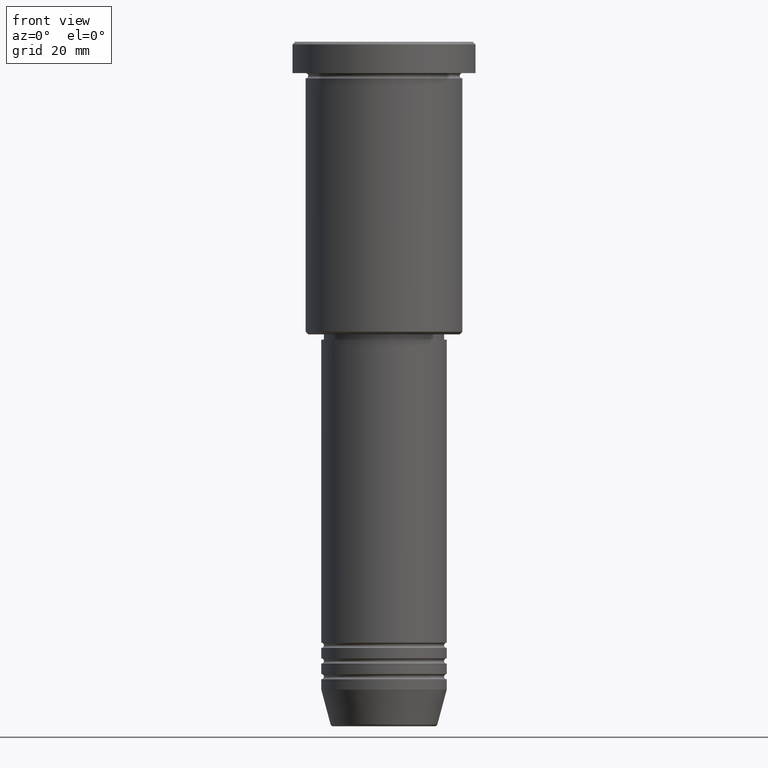
[diagram: clean part render]
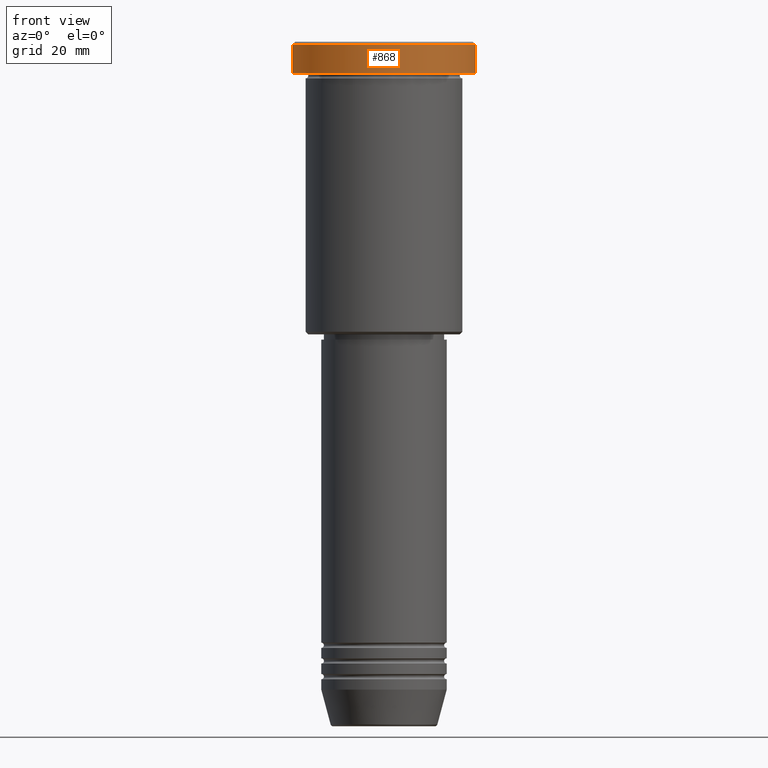
[diagram: same view with one face highlighted and labeled with its STEP entity id]
A machine part, front view. The second image highlights one B-rep face of the part: STEP entity #868.
In plain terms, the highlighted cylindrical surface (partial cylindrical patch) has radius 17.5 mm, axis along (-0, -0, 1).
Its self-contained STEP definition (entity closure, byte-faithful):
#3 = ORIENTED_EDGE ( 'NONE', *, *, #198, .F. ) ;
#22 = CARTESIAN_POINT ( 'NONE',  ( -17.50000000000000000, 2.143131898507868248E-15, -5.999999999999995559 ) ) ;
#93 = DIRECTION ( 'NONE',  ( 1.000000000000000000, 0.000000000000000000, 0.000000000000000000 ) ) ;
#106 = DIRECTION ( 'NONE',  ( -0.000000000000000000, -0.000000000000000000, 1.000000000000000000 ) ) ;
#169 = AXIS2_PLACEMENT_3D ( 'NONE', #752, #289, #93 ) ;
#174 = DIRECTION ( 'NONE',  ( 0.000000000000000000, 0.000000000000000000, -1.000000000000000000 ) ) ;
#180 = EDGE_CURVE ( 'NONE', #523, #476, #656, .T. ) ;
#198 = EDGE_CURVE ( 'NONE', #922, #476, #212, .T. ) ;
#212 = LINE ( 'NONE', #950, #954 ) ;
#264 = CARTESIAN_POINT ( 'NONE',  ( 0.000000000000000000, 0.000000000000000000, -0.5000000000000003331 ) ) ;
#274 = DIRECTION ( 'NONE',  ( -0.000000000000000000, -0.000000000000000000, 1.000000000000000000 ) ) ;
#289 = DIRECTION ( 'NONE',  ( -0.000000000000000000, -0.000000000000000000, 1.000000000000000000 ) ) ;
#302 = AXIS2_PLACEMENT_3D ( 'NONE', #264, #174, #1093 ) ;
#367 = LINE ( 'NONE', #734, #617 ) ;
#416 = CARTESIAN_POINT ( 'NONE',  ( 0.000000000000000000, 0.000000000000000000, -5.999999999999995559 ) ) ;
#417 = ORIENTED_EDGE ( 'NONE', *, *, #1150, .T. ) ;
#425 = CIRCLE ( 'NONE', #842, 17.50000000000000000 ) ;
#439 = ORIENTED_EDGE ( 'NONE', *, *, #180, .T. ) ;
#474 = EDGE_CURVE ( 'NONE', #1042, #523, #367, .T. ) ;
#476 = VERTEX_POINT ( 'NONE', #748 ) ;
#501 = DIRECTION ( 'NONE',  ( 1.000000000000000000, 0.000000000000000000, 0.000000000000000000 ) ) ;
#523 = VERTEX_POINT ( 'NONE', #741 ) ;
#560 = FACE_OUTER_BOUND ( 'NONE', #821, .T. ) ;
#594 = DIRECTION ( 'NONE',  ( -0.000000000000000000, -0.000000000000000000, 1.000000000000000000 ) ) ;
#617 = VECTOR ( 'NONE', #274, 1000.000000000000000 ) ;
#656 = CIRCLE ( 'NONE', #302, 17.50000000000000000 ) ;
#734 = CARTESIAN_POINT ( 'NONE',  ( 17.50000000000000000, 0.000000000000000000, 0.000000000000000000 ) ) ;
#741 = CARTESIAN_POINT ( 'NONE',  ( 17.50000000000000000, 0.000000000000000000, -0.5000000000000003331 ) ) ;
#748 = CARTESIAN_POINT ( 'NONE',  ( -17.50000000000000000, 2.143131898507868248E-15, -0.5000000000000003331 ) ) ;
#752 = CARTESIAN_POINT ( 'NONE',  ( 0.000000000000000000, 0.000000000000000000, 0.000000000000000000 ) ) ;
#807 = CARTESIAN_POINT ( 'NONE',  ( 17.50000000000000000, 0.000000000000000000, -5.999999999999995559 ) ) ;
#821 = EDGE_LOOP ( 'NONE', ( #3, #417, #979, #439 ) ) ;
#842 = AXIS2_PLACEMENT_3D ( 'NONE', #416, #594, #501 ) ;
#868 = ADVANCED_FACE ( 'NONE', ( #560 ), #938, .T. ) ;
#922 = VERTEX_POINT ( 'NONE', #22 ) ;
#938 = CYLINDRICAL_SURFACE ( 'NONE', #169, 17.50000000000000000 ) ;
#950 = CARTESIAN_POINT ( 'NONE',  ( -17.50000000000000000, 2.143131898507868248E-15, 0.000000000000000000 ) ) ;
#954 = VECTOR ( 'NONE', #106, 1000.000000000000000 ) ;
#979 = ORIENTED_EDGE ( 'NONE', *, *, #474, .T. ) ;
#1042 = VERTEX_POINT ( 'NONE', #807 ) ;
#1093 = DIRECTION ( 'NONE',  ( 1.000000000000000000, 0.000000000000000000, 0.000000000000000000 ) ) ;
#1150 = EDGE_CURVE ( 'NONE', #922, #1042, #425, .T. ) ;